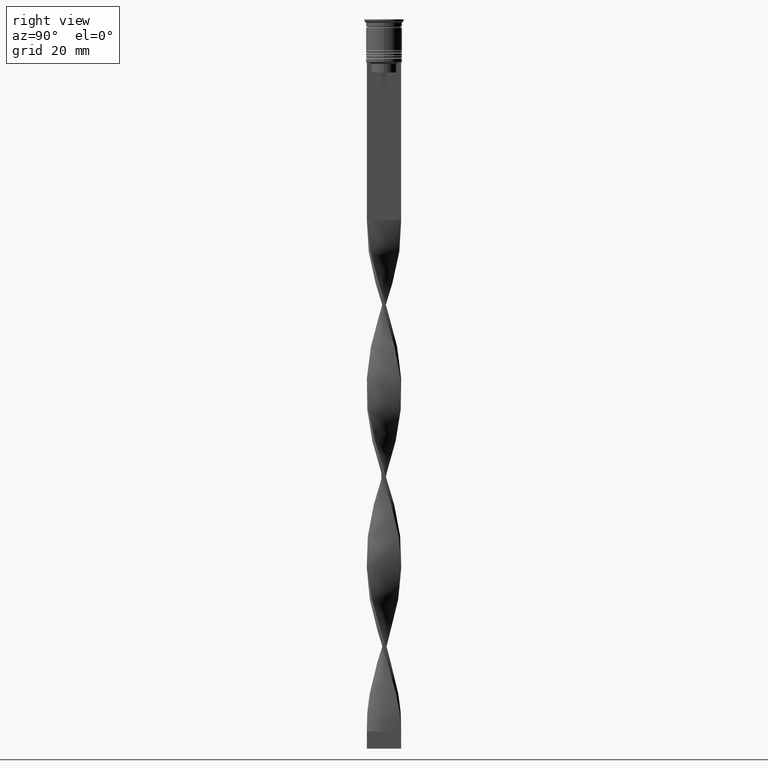
[diagram: clean part render]
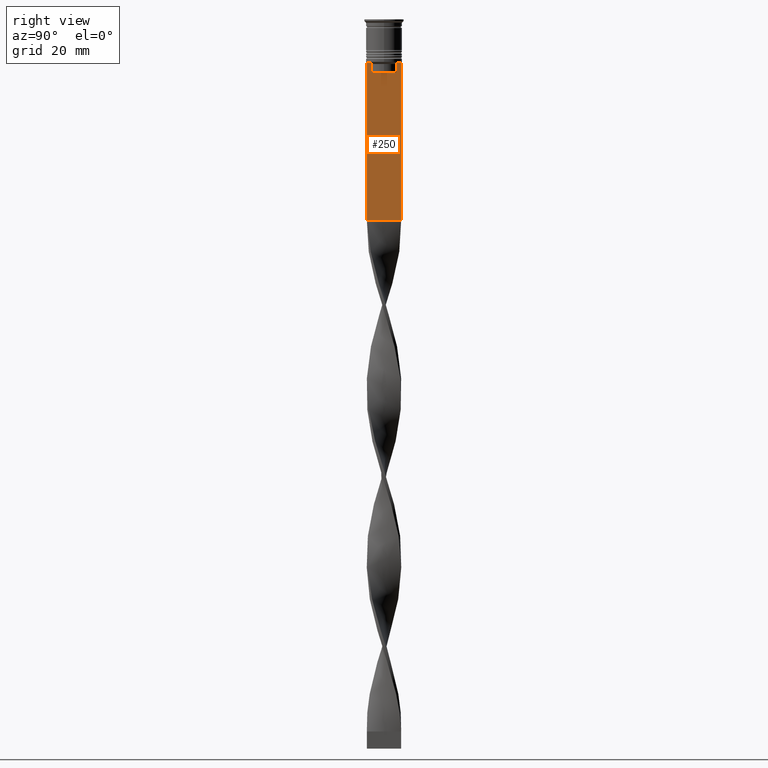
[diagram: same view with one face highlighted and labeled with its STEP entity id]
A machine part, right view. The second image highlights one B-rep face of the part: STEP entity #250.
In plain terms, the highlighted planar face has unit normal (-1, 0, 0).
Its self-contained STEP definition (entity closure, byte-faithful):
#26 = ORIENTED_EDGE ( 'NONE', *, *, #3345, .T. ) ;
#42 = CARTESIAN_POINT ( 'NONE',  ( 0.5000000000000000000, -4.119769411022908834, -12.50000000000000000 ) ) ;
#178 = CARTESIAN_POINT ( 'NONE',  ( 0.5000000000000000000, 5.000000000000000888, -58.50000000000000000 ) ) ;
#221 = CARTESIAN_POINT ( 'NONE',  ( 0.5000000000000000000, -4.999999999999999112, -2.450124378879110054 ) ) ;
#250 = ADVANCED_FACE ( 'NONE', ( #3184 ), #2313, .F. ) ;
#272 = B_SPLINE_CURVE_WITH_KNOTS ( 'NONE', 3,
 ( #1983, #3146, #3449, #1909 ),
 .UNSPECIFIED., .F., .F.,
 ( 4, 4 ),
 ( 0.007067514914986626831, 0.007777582239375525376 ),
 .UNSPECIFIED. ) ;
#389 = ORIENTED_EDGE ( 'NONE', *, *, #520, .T. ) ;
#413 = VERTEX_POINT ( 'NONE', #3510 ) ;
#449 = DIRECTION ( 'NONE',  ( 0.000000000000000000, 1.000000000000000000, 0.000000000000000000 ) ) ;
#520 = EDGE_CURVE ( 'NONE', #2747, #413, #1296, .T. ) ;
#578 = LINE ( 'NONE', #885, #2553 ) ;
#601 = DIRECTION ( 'NONE',  ( -0.000000000000000000, -0.000000000000000000, 1.000000000000000000 ) ) ;
#640 = EDGE_CURVE ( 'NONE', #2843, #2886, #876, .T. ) ;
#651 = DIRECTION ( 'NONE',  ( 0.000000000000000000, 0.000000000000000000, -1.000000000000000000 ) ) ;
#784 = CARTESIAN_POINT ( 'NONE',  ( 0.5000000000000000000, -4.999999999999999112, -2.450124378879110054 ) ) ;
#789 = LINE ( 'NONE', #3433, #3043 ) ;
#804 = CARTESIAN_POINT ( 'NONE',  ( 0.5000000000000000000, 5.000000000000000888, -12.50000000000000000 ) ) ;
#821 = CARTESIAN_POINT ( 'NONE',  ( 0.5000000000000000000, 5.000000000000000888, -2.450124378879110054 ) ) ;
#865 = LINE ( 'NONE', #1198, #2239 ) ;
#874 = VECTOR ( 'NONE', #1644, 1000.000000000000000 ) ;
#876 = LINE ( 'NONE', #221, #1604 ) ;
#885 = CARTESIAN_POINT ( 'NONE',  ( 0.5000000000000000000, -4.999999999999999112, -12.50000000000000000 ) ) ;
#895 = DIRECTION ( 'NONE',  ( 0.000000000000000000, 0.000000000000000000, -1.000000000000000000 ) ) ;
#915 = EDGE_CURVE ( 'NONE', #1889, #2369, #3467, .T. ) ;
#1157 = ORIENTED_EDGE ( 'NONE', *, *, #915, .F. ) ;
#1198 = CARTESIAN_POINT ( 'NONE',  ( 0.5000000000000000000, -3.615591237958188042, 0.000000000000000000 ) ) ;
#1211 = CARTESIAN_POINT ( 'NONE',  ( 0.5000000000000000000, -3.615591237958188042, -13.00000000000000178 ) ) ;
#1293 = VECTOR ( 'NONE', #1936, 1000.000000000000000 ) ;
#1296 = LINE ( 'NONE', #1332, #1293 ) ;
#1332 = CARTESIAN_POINT ( 'NONE',  ( 0.5000000000000000000, 3.650000000000003464, -15.50000000000000000 ) ) ;
#1365 = ORIENTED_EDGE ( 'NONE', *, *, #3651, .T. ) ;
#1389 = DIRECTION ( 'NONE',  ( 0.000000000000000000, -1.000000000000000000, 0.000000000000000000 ) ) ;
#1397 = CARTESIAN_POINT ( 'NONE',  ( 0.5000000000000000000, -4.999999999999999112, -58.50000000000000000 ) ) ;
#1419 = DIRECTION ( 'NONE',  ( 0.000000000000000000, -1.000000000000000000, 0.000000000000000000 ) ) ;
#1475 = EDGE_CURVE ( 'NONE', #2886, #2369, #789, .T. ) ;
#1496 = CARTESIAN_POINT ( 'NONE',  ( 0.5000000000000000000, -3.783746406711539390, -12.83343003979123509 ) ) ;
#1577 = VERTEX_POINT ( 'NONE', #3039 ) ;
#1604 = VECTOR ( 'NONE', #895, 1000.000000000000000 ) ;
#1644 = DIRECTION ( 'NONE',  ( 0.000000000000000000, 0.000000000000000000, -1.000000000000000000 ) ) ;
#1778 = ORIENTED_EDGE ( 'NONE', *, *, #1475, .T. ) ;
#1792 = AXIS2_PLACEMENT_3D ( 'NONE', #784, #2267, #2603 ) ;
#1889 = VERTEX_POINT ( 'NONE', #804 ) ;
#1906 = ORIENTED_EDGE ( 'NONE', *, *, #640, .T. ) ;
#1909 = CARTESIAN_POINT ( 'NONE',  ( 0.5000000000000000000, 3.615591237958188042, -13.00000000000000178 ) ) ;
#1936 = DIRECTION ( 'NONE',  ( 0.000000000000000000, -1.000000000000000000, 0.000000000000000000 ) ) ;
#1983 = CARTESIAN_POINT ( 'NONE',  ( 0.5000000000000000000, 4.119769411022908834, -12.50000000000000000 ) ) ;
#2048 = EDGE_CURVE ( 'NONE', #2093, #3754, #2303, .T. ) ;
#2093 = VERTEX_POINT ( 'NONE', #3214 ) ;
#2239 = VECTOR ( 'NONE', #601, 1000.000000000000000 ) ;
#2267 = DIRECTION ( 'NONE',  ( -1.000000000000000000, 0.000000000000000000, 0.000000000000000000 ) ) ;
#2303 = B_SPLINE_CURVE_WITH_KNOTS ( 'NONE', 3,
 ( #1211, #1496, #2682, #42 ),
 .UNSPECIFIED., .F., .F.,
 ( 4, 4 ),
 ( 0.01745179617248910492, 0.01816207215777258452 ),
 .UNSPECIFIED. ) ;
#2313 = PLANE ( 'NONE',  #1792 ) ;
#2321 = VERTEX_POINT ( 'NONE', #2555 ) ;
#2369 = VERTEX_POINT ( 'NONE', #178 ) ;
#2385 = ORIENTED_EDGE ( 'NONE', *, *, #3586, .T. ) ;
#2483 = LINE ( 'NONE', #3436, #3711 ) ;
#2553 = VECTOR ( 'NONE', #1419, 1000.000000000000000 ) ;
#2555 = CARTESIAN_POINT ( 'NONE',  ( 0.5000000000000000000, 3.615591237958188042, -13.00000000000000178 ) ) ;
#2585 = ORIENTED_EDGE ( 'NONE', *, *, #2913, .T. ) ;
#2603 = DIRECTION ( 'NONE',  ( 0.000000000000000000, 0.000000000000000000, 1.000000000000000000 ) ) ;
#2682 = CARTESIAN_POINT ( 'NONE',  ( 0.5000000000000000000, -3.951794168112527927, -12.66675163073525923 ) ) ;
#2717 = LINE ( 'NONE', #3280, #2871 ) ;
#2747 = VERTEX_POINT ( 'NONE', #3321 ) ;
#2749 = ORIENTED_EDGE ( 'NONE', *, *, #3691, .T. ) ;
#2801 = CARTESIAN_POINT ( 'NONE',  ( 0.5000000000000000000, -4.119769411022908834, -12.50000000000000000 ) ) ;
#2819 = ORIENTED_EDGE ( 'NONE', *, *, #2048, .T. ) ;
#2843 = VERTEX_POINT ( 'NONE', #3415 ) ;
#2871 = VECTOR ( 'NONE', #651, 1000.000000000000000 ) ;
#2886 = VERTEX_POINT ( 'NONE', #1397 ) ;
#2913 = EDGE_CURVE ( 'NONE', #1577, #2321, #272, .T. ) ;
#3039 = CARTESIAN_POINT ( 'NONE',  ( 0.5000000000000000000, 4.119769411022908834, -12.50000000000000000 ) ) ;
#3043 = VECTOR ( 'NONE', #449, 1000.000000000000000 ) ;
#3122 = EDGE_LOOP ( 'NONE', ( #2385, #2585, #26, #389, #1365, #2819, #2749, #1906, #1778, #1157 ) ) ;
#3146 = CARTESIAN_POINT ( 'NONE',  ( 0.5000000000000000000, 3.951794205566887985, -12.66675159355373737 ) ) ;
#3184 = FACE_OUTER_BOUND ( 'NONE', #3122, .T. ) ;
#3214 = CARTESIAN_POINT ( 'NONE',  ( 0.5000000000000000000, -3.615591237958188042, -13.00000000000000178 ) ) ;
#3280 = CARTESIAN_POINT ( 'NONE',  ( 0.5000000000000000000, 3.615591237958188042, 0.000000000000000000 ) ) ;
#3321 = CARTESIAN_POINT ( 'NONE',  ( 0.5000000000000000000, 3.615591237958188486, -15.50000000000000000 ) ) ;
#3345 = EDGE_CURVE ( 'NONE', #2321, #2747, #2717, .T. ) ;
#3415 = CARTESIAN_POINT ( 'NONE',  ( 0.5000000000000000000, -4.999999999999999112, -12.50000000000000000 ) ) ;
#3433 = CARTESIAN_POINT ( 'NONE',  ( 0.5000000000000000000, -4.999999999999999112, -58.50000000000000000 ) ) ;
#3436 = CARTESIAN_POINT ( 'NONE',  ( 0.5000000000000000000, -4.999999999999999112, -12.50000000000000000 ) ) ;
#3449 = CARTESIAN_POINT ( 'NONE',  ( 0.5000000000000000000, 3.783746449387932476, -12.83342999751715752 ) ) ;
#3467 = LINE ( 'NONE', #821, #874 ) ;
#3510 = CARTESIAN_POINT ( 'NONE',  ( 0.5000000000000000000, -3.615591237958188486, -15.50000000000000000 ) ) ;
#3586 = EDGE_CURVE ( 'NONE', #1889, #1577, #2483, .T. ) ;
#3651 = EDGE_CURVE ( 'NONE', #413, #2093, #865, .T. ) ;
#3691 = EDGE_CURVE ( 'NONE', #3754, #2843, #578, .T. ) ;
#3711 = VECTOR ( 'NONE', #1389, 1000.000000000000000 ) ;
#3754 = VERTEX_POINT ( 'NONE', #2801 ) ;